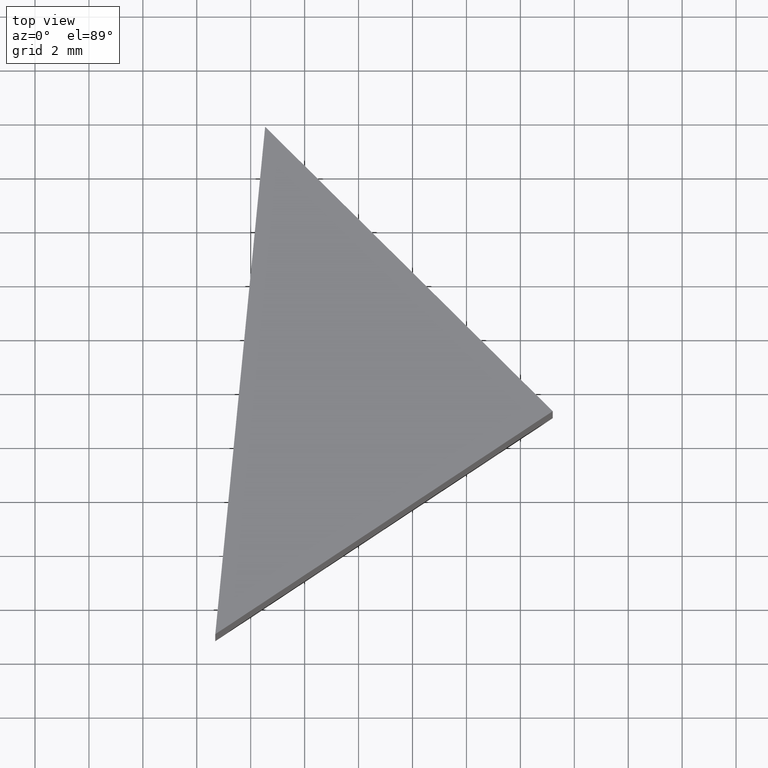
[diagram: clean part render]
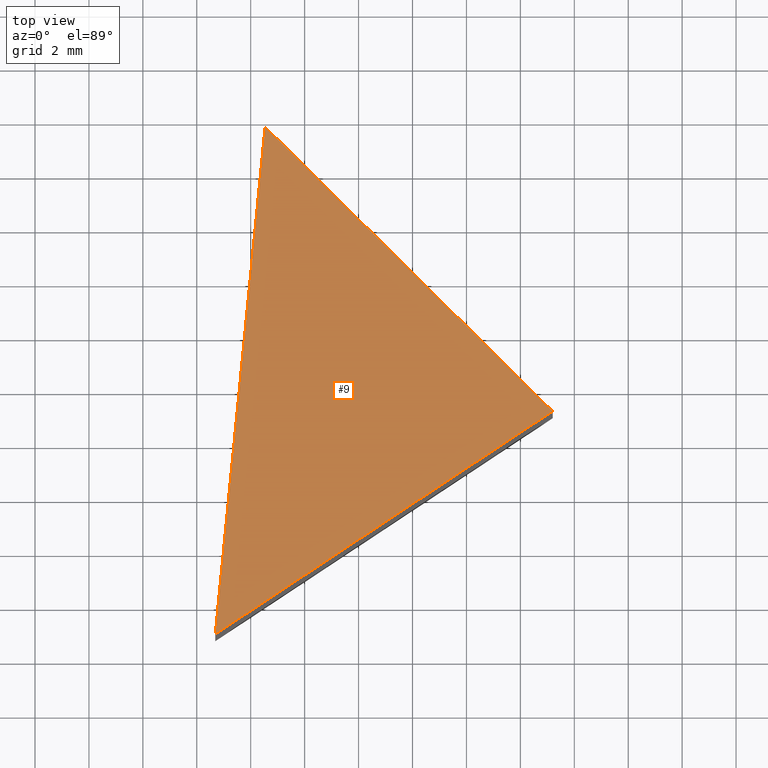
[diagram: same view with one face highlighted and labeled with its STEP entity id]
A machine part, top view. The second image highlights one B-rep face of the part: STEP entity #9.
In plain terms, the highlighted planar face has unit normal (0, 0, -1).
Its self-contained STEP definition (entity closure, byte-faithful):
#1 = CARTESIAN_POINT ( 'NONE',  ( 13.19977079032643300, 9.118493995075059600, 15.00000000000000000 ) ) ;
#5 = CARTESIAN_POINT ( 'NONE',  ( 0.0000000000000000000, 0.0000000000000000000, 15.00000000000000000 ) ) ;
#9 = ADVANCED_FACE ( 'NONE', ( #148 ), #50, .F. ) ;
#19 = CARTESIAN_POINT ( 'NONE',  ( 0.6861709744360347000, 0.8474711050240408800, 15.00000000000000000 ) ) ;
#22 = VECTOR ( 'NONE', #110, 1000.000000000000100 ) ;
#24 = LINE ( 'NONE', #1, #75 ) ;
#28 = EDGE_CURVE ( 'NONE', #113, #129, #96, .T. ) ;
#36 = ORIENTED_EDGE ( 'NONE', *, *, #93, .T. ) ;
#48 = CARTESIAN_POINT ( 'NONE',  ( 13.19977079032643300, 9.118493995075059600, 15.00000000000000000 ) ) ;
#50 = PLANE ( 'NONE',  #85 ) ;
#56 = LINE ( 'NONE', #19, #22 ) ;
#65 = VECTOR ( 'NONE', #76, 1000.000000000000000 ) ;
#75 = VECTOR ( 'NONE', #147, 1000.000000000000000 ) ;
#76 = DIRECTION ( 'NONE',  ( -0.7109728236074627200, 0.7032194850056643400, 0.0000000000000000000 ) ) ;
#77 = CARTESIAN_POINT ( 'NONE',  ( 2.535178436214490500, 19.66678627016002400, 15.00000000000000000 ) ) ;
#85 = AXIS2_PLACEMENT_3D ( 'NONE', #5, #111, #160 ) ;
#92 = CARTESIAN_POINT ( 'NONE',  ( 0.6861709744360347000, 0.8474711050240408800, 15.00000000000000000 ) ) ;
#93 = EDGE_CURVE ( 'NONE', #129, #165, #56, .T. ) ;
#96 = LINE ( 'NONE', #48, #65 ) ;
#98 = ORIENTED_EDGE ( 'NONE', *, *, #163, .T. ) ;
#110 = DIRECTION ( 'NONE',  ( -0.09777970958415378700, -0.9952080829623715100, -0.0000000000000000000 ) ) ;
#111 = DIRECTION ( 'NONE',  ( 0.0000000000000000000, 0.0000000000000000000, -1.000000000000000000 ) ) ;
#113 = VERTEX_POINT ( 'NONE', #149 ) ;
#129 = VERTEX_POINT ( 'NONE', #77 ) ;
#147 = DIRECTION ( 'NONE',  ( 0.8342399877260263700, 0.5514015260034012000, -0.0000000000000000000 ) ) ;
#148 = FACE_OUTER_BOUND ( 'NONE', #162, .T. ) ;
#149 = CARTESIAN_POINT ( 'NONE',  ( 13.19977079032643300, 9.118493995075059600, 15.00000000000000000 ) ) ;
#158 = ORIENTED_EDGE ( 'NONE', *, *, #28, .T. ) ;
#160 = DIRECTION ( 'NONE',  ( -1.000000000000000000, 0.0000000000000000000, 0.0000000000000000000 ) ) ;
#162 = EDGE_LOOP ( 'NONE', ( #98, #158, #36 ) ) ;
#163 = EDGE_CURVE ( 'NONE', #165, #113, #24, .T. ) ;
#165 = VERTEX_POINT ( 'NONE', #92 ) ;